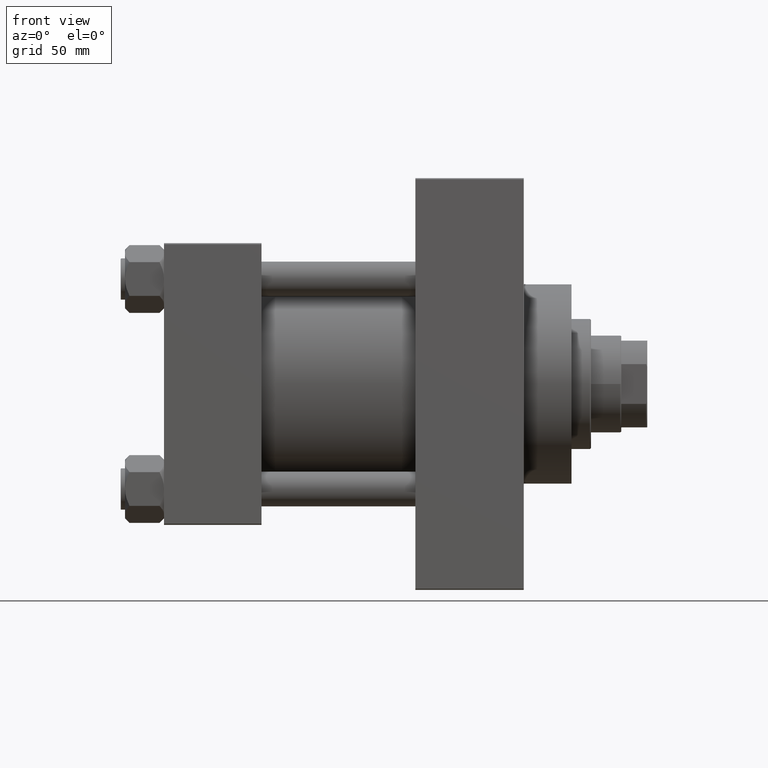
[diagram: clean part render]
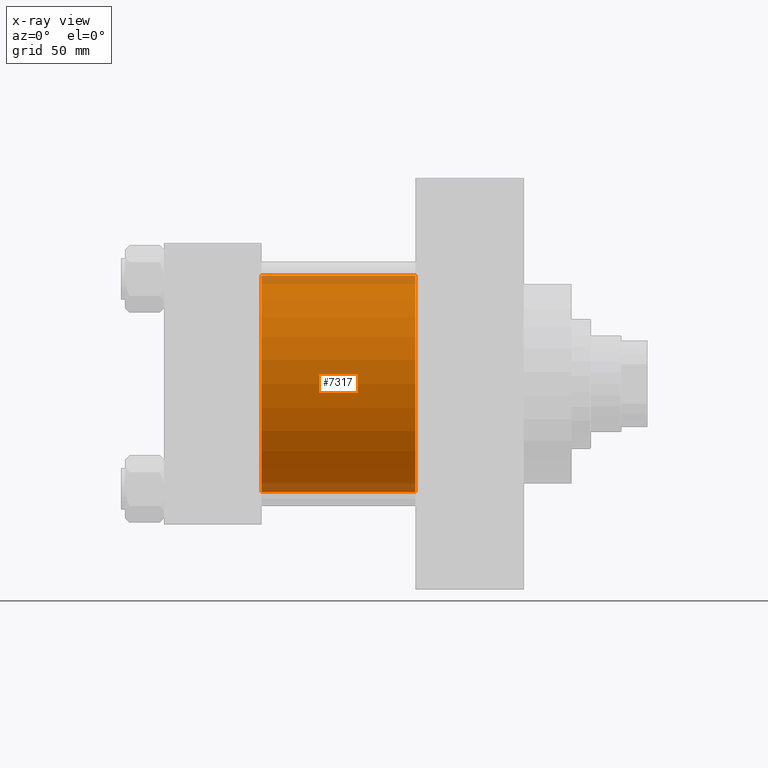
[diagram: x-ray — body ghosted, one internal face saturated and labeled with its STEP entity id]
A machine part, front view, then the same camera in x-ray: the body is ghosted and one INTERNAL B-rep face — a face not visible from any outside direction — is saturated and labeled: STEP entity #7317.
In plain terms, the highlighted cylindrical surface (partial cylindrical patch) has radius 50 mm, axis along (-1, -0, -0).
Its self-contained STEP definition (entity closure, byte-faithful):
#1599 = CYLINDRICAL_SURFACE ( 'NONE', #28925, 50.00000000000000000 ) ;
#1839 = DIRECTION ( 'NONE',  ( 0.000000000000000000, 0.000000000000000000, 1.000000000000000000 ) ) ;
#3383 = LINE ( 'NONE', #38360, #19209 ) ;
#5178 = EDGE_CURVE ( 'NONE', #24660, #33651, #3383, .T. ) ;
#7317 = ADVANCED_FACE ( 'NONE', ( #9393 ), #1599, .F. ) ;
#9393 = FACE_OUTER_BOUND ( 'NONE', #21815, .T. ) ;
#10809 = DIRECTION ( 'NONE',  ( 1.000000000000000000, 0.000000000000000000, 0.000000000000000000 ) ) ;
#11613 = CARTESIAN_POINT ( 'NONE',  ( 115.9999999999999858, -2.602085213965210642E-15, 50.00000000000000000 ) ) ;
#11806 = CIRCLE ( 'NONE', #43969, 50.00000000000000000 ) ;
#12781 = CARTESIAN_POINT ( 'NONE',  ( 45.00000000000000000, -2.602085213965210642E-15, 50.00000000000000000 ) ) ;
#13514 = VERTEX_POINT ( 'NONE', #37896 ) ;
#13961 = VECTOR ( 'NONE', #23204, 1000.000000000000000 ) ;
#19209 = VECTOR ( 'NONE', #34353, 1000.000000000000000 ) ;
#19447 = EDGE_CURVE ( 'NONE', #13514, #23750, #41578, .T. ) ;
#20153 = ORIENTED_EDGE ( 'NONE', *, *, #5178, .T. ) ;
#21098 = CARTESIAN_POINT ( 'NONE',  ( 115.9999999999999858, 3.521148781771555838E-15, -50.00000000000000000 ) ) ;
#21235 = CARTESIAN_POINT ( 'NONE',  ( 115.9999999999999858, -2.602085213965210642E-15, 0.000000000000000000 ) ) ;
#21448 = CARTESIAN_POINT ( 'NONE',  ( 115.9999999999999858, -2.602085213965210642E-15, 0.000000000000000000 ) ) ;
#21815 = EDGE_LOOP ( 'NONE', ( #48324, #20153, #42979, #46583 ) ) ;
#23204 = DIRECTION ( 'NONE',  ( -1.000000000000000000, -0.000000000000000000, -0.000000000000000000 ) ) ;
#23750 = VERTEX_POINT ( 'NONE', #12781 ) ;
#24660 = VERTEX_POINT ( 'NONE', #21098 ) ;
#24720 = DIRECTION ( 'NONE',  ( 0.000000000000000000, 0.000000000000000000, -1.000000000000000000 ) ) ;
#26682 = DIRECTION ( 'NONE',  ( 0.000000000000000000, 0.000000000000000000, -1.000000000000000000 ) ) ;
#26764 = EDGE_CURVE ( 'NONE', #13514, #24660, #47898, .T. ) ;
#28925 = AXIS2_PLACEMENT_3D ( 'NONE', #21235, #47915, #1839 ) ;
#29946 = CARTESIAN_POINT ( 'NONE',  ( 45.00000000000000000, -2.602085213965210642E-15, 0.000000000000000000 ) ) ;
#32522 = DIRECTION ( 'NONE',  ( 1.000000000000000000, 0.000000000000000000, 0.000000000000000000 ) ) ;
#33426 = AXIS2_PLACEMENT_3D ( 'NONE', #21448, #32522, #24720 ) ;
#33651 = VERTEX_POINT ( 'NONE', #44850 ) ;
#34353 = DIRECTION ( 'NONE',  ( -1.000000000000000000, -0.000000000000000000, -0.000000000000000000 ) ) ;
#37896 = CARTESIAN_POINT ( 'NONE',  ( 115.9999999999999858, -2.602085213965210642E-15, 50.00000000000000000 ) ) ;
#38360 = CARTESIAN_POINT ( 'NONE',  ( 115.9999999999999858, 3.521148781771555838E-15, -50.00000000000000000 ) ) ;
#41578 = LINE ( 'NONE', #11613, #13961 ) ;
#42979 = ORIENTED_EDGE ( 'NONE', *, *, #49149, .F. ) ;
#43969 = AXIS2_PLACEMENT_3D ( 'NONE', #29946, #10809, #26682 ) ;
#44850 = CARTESIAN_POINT ( 'NONE',  ( 45.00000000000000000, 3.521148781771555838E-15, -50.00000000000000000 ) ) ;
#46583 = ORIENTED_EDGE ( 'NONE', *, *, #19447, .F. ) ;
#47898 = CIRCLE ( 'NONE', #33426, 50.00000000000000000 ) ;
#47915 = DIRECTION ( 'NONE',  ( -1.000000000000000000, -0.000000000000000000, -0.000000000000000000 ) ) ;
#48324 = ORIENTED_EDGE ( 'NONE', *, *, #26764, .T. ) ;
#49149 = EDGE_CURVE ( 'NONE', #23750, #33651, #11806, .T. ) ;